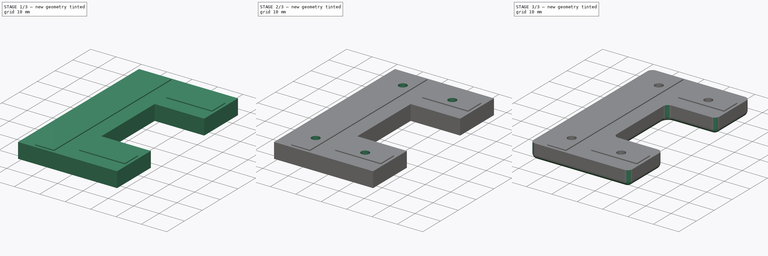
[diagram: build sequence overview — one tinted view per stage of 3, left to right]
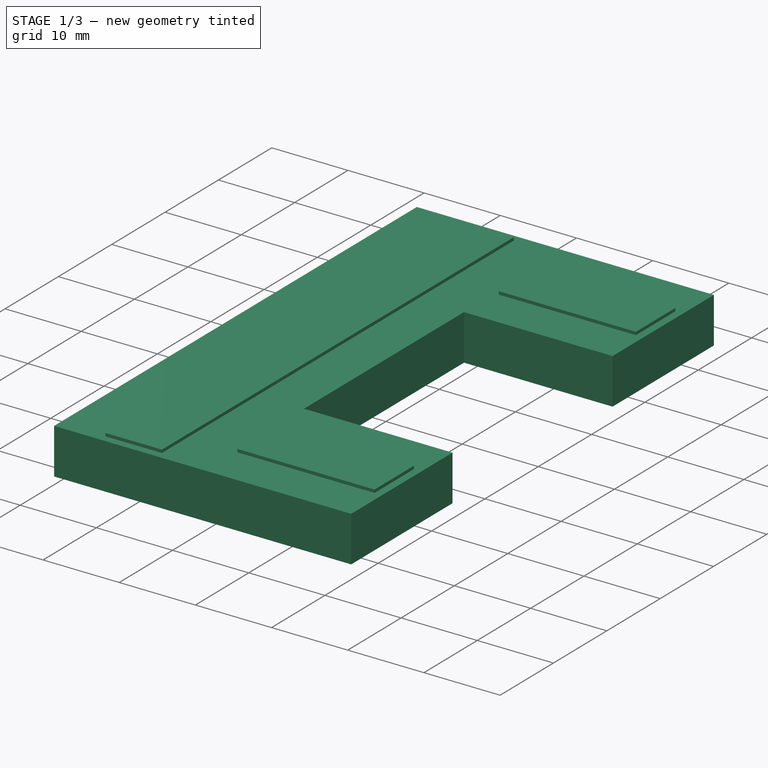
[diagram: stage 1 of 3 — iso view after this stage's code; geometry added in this stage tinted green]
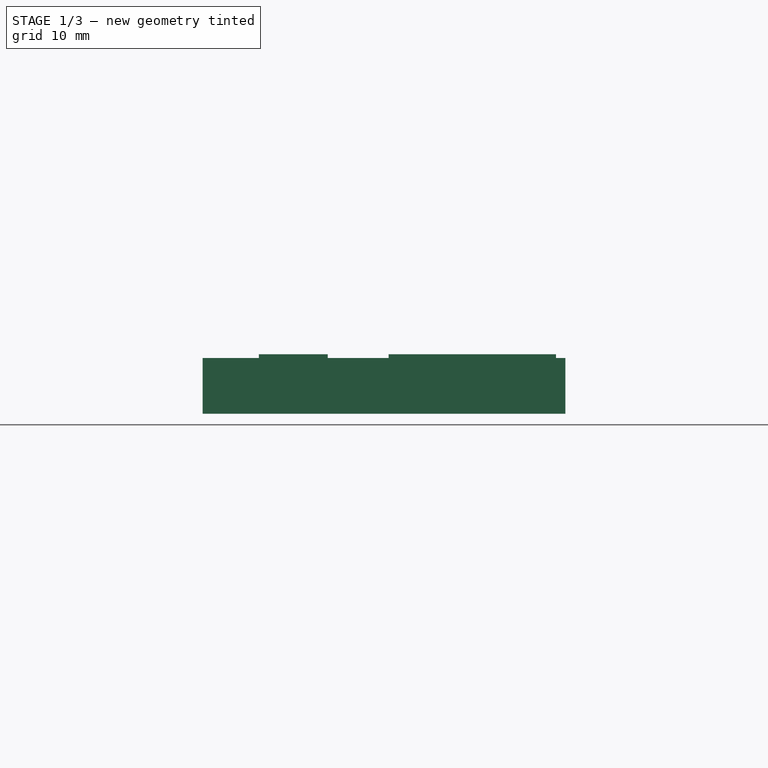
[diagram: stage 1 of 3 — front view after this stage's code; geometry added in this stage tinted green]
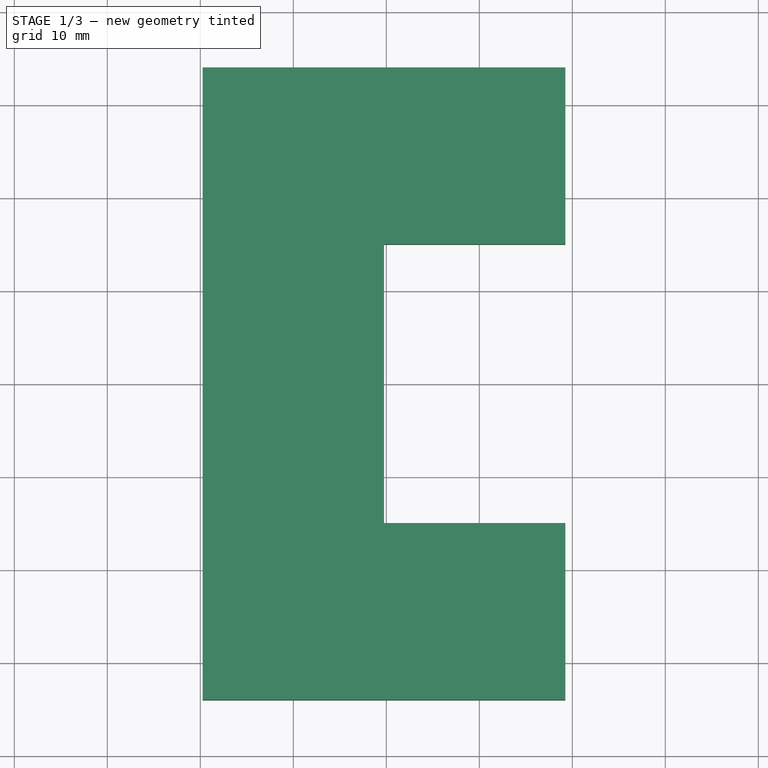
[diagram: stage 1 of 3 — top view after this stage's code; geometry added in this stage tinted green]
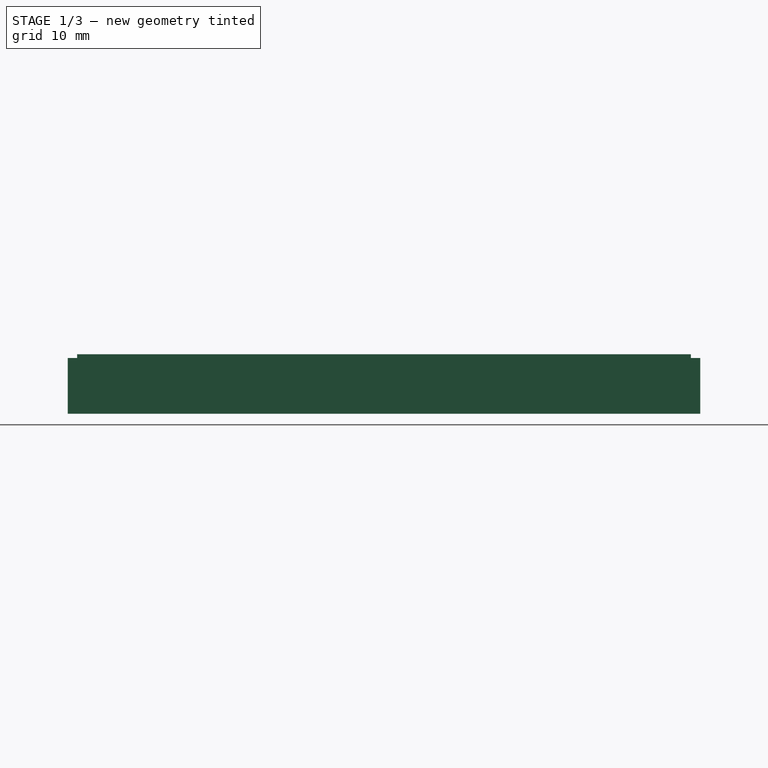
[diagram: stage 1 of 3 — right view after this stage's code; geometry added in this stage tinted green]
FCSTD DOCUMENT  (FreeCAD 0.16R5235 (Git))
Label: bracket-dbl
License: All rights reserved
LicenseURL: https://ru.wikipedia.org/wiki/All_rights_reserved
objects: Sketcher::SketchObject×5, PartDesign::Pad×3, PartDesign::Pocket×2, PartDesign::Chamfer×1, PartDesign::Fillet×1
note: 17 computed .brp shape members not serialized (recipe doc carries the construction recipe); baked Part::Feature solids carry a one-line shape summary decoded from their .brp

FEATURE [Sketcher::SketchObject] Sketch  label="body"
  sketch-geometry (10):
    g0: LineSegment StartX=-9.75 StartY=34 StartZ=0 EndX=-9.75 EndY=-34 EndZ=0
    g1: LineSegment StartX=-9.75 StartY=-34 StartZ=0 EndX=29.25 EndY=-34 EndZ=0
    g2: LineSegment StartX=29.25 StartY=-34 StartZ=0 EndX=29.25 EndY=-15 EndZ=0
    g3: LineSegment StartX=29.25 StartY=-15 StartZ=0 EndX=9.75 EndY=-15 EndZ=0
    g4: LineSegment StartX=9.75 StartY=-15 StartZ=0 EndX=9.75 EndY=15 EndZ=0
    g5: LineSegment StartX=9.75 StartY=15 StartZ=0 EndX=29.25 EndY=15 EndZ=0
    g6: LineSegment StartX=29.25 StartY=15 StartZ=0 EndX=29.25 EndY=34 EndZ=0
    g7: GeomPoint [constr] X=9.75 Y=34 Z=0
    g8: LineSegment StartX=-9.75 StartY=34 StartZ=0 EndX=9.75 EndY=34 EndZ=0
    g9: LineSegment StartX=9.75 StartY=34 StartZ=0 EndX=29.25 EndY=34 EndZ=0
  constraints (28):
    c: Vertical(g0)
    c: Coincident(g0,g1)
    c: Horizontal(g1)
    c: Coincident(g1,g2)
    c: Vertical(g2)
    c: Coincident(g2,g3)
    c: Horizontal(g3)
    c: Coincident(g3,g4)
    c: Vertical(g4)
    c: Coincident(g4,g5)
    c: Horizontal(g5)
    c: Coincident(g5,g6)
    c: Vertical(g6)
    c: Equal(g6,g2)
    c: DistanceY(g2) = 19
    c: DistanceY(g4) = 30
    c: Symmetric(g0,g0,g-1)
    c: Coincident(g8,g0)
    c: Coincident(g8,g7)
    c: Horizontal(g8)
    c: Coincident(g9,g7)
    c: Coincident(g9,g6)
    c: Horizontal(g9)
    c: Equal(g9,g8)
    c: Symmetric(g7,g0,g-2)
    c: Equal(g9,g5)
    c: Equal(g3,g5)
    c: DistanceX(g0,g6) = 39
FEATURE [PartDesign::Pad] Pad
  Length = 6
  Length2 = 100
  Sketch = -> Sketch
  Type = 0
FEATURE [Sketcher::SketchObject] Sketch002  label="pads"
  ExternalGeometry = -> [Pad]
  Placement = pos=(0,0,6) rot=(0,0,1;0rad)
  Support = -> Pad [Face9]
  sketch-geometry (16):
    g0: LineSegment StartX=-3.7 StartY=33 StartZ=0 EndX=3.7 EndY=33 EndZ=0
    g1: LineSegment StartX=3.7 StartY=33 StartZ=0 EndX=3.7 EndY=-33 EndZ=0
    g2: LineSegment StartX=3.7 StartY=-33 StartZ=0 EndX=-3.7 EndY=-33 EndZ=0
    g3: LineSegment StartX=-3.7 StartY=-33 StartZ=0 EndX=-3.7 EndY=33 EndZ=0
    g4: LineSegment StartX=10.25 StartY=28.2 StartZ=0 EndX=28.25 EndY=28.2 EndZ=0
    g5: LineSegment StartX=28.25 StartY=28.2 StartZ=0 EndX=28.25 EndY=20.8 EndZ=0
    g6: LineSegment StartX=28.25 StartY=20.8 StartZ=0 EndX=10.25 EndY=20.8 EndZ=0
    g7: LineSegment StartX=10.25 StartY=20.8 StartZ=0 EndX=10.25 EndY=28.2 EndZ=0
    g8: LineSegment StartX=10.25 StartY=-20.8 StartZ=0 EndX=28.25 EndY=-20.8 EndZ=0
    g9: LineSegment StartX=28.25 StartY=-20.8 StartZ=0 EndX=28.25 EndY=-28.2 EndZ=0
    g10: LineSegment StartX=28.25 StartY=-28.2 StartZ=0 EndX=10.25 EndY=-28.2 EndZ=0
    g11: LineSegment StartX=10.25 StartY=-28.2 StartZ=0 EndX=10.25 EndY=-20.8 EndZ=0
    g12: LineSegment [constr] StartX=12 StartY=34 StartZ=0 EndX=12 EndY=28.2 EndZ=0
    g13: LineSegment [constr] StartX=12 StartY=20.8 StartZ=0 EndX=12 EndY=15 EndZ=0
    g14: LineSegment [constr] StartX=12 StartY=-15 StartZ=0 EndX=12 EndY=-20.8 EndZ=0
    g15: LineSegment [constr] StartX=12 StartY=-28.2 StartZ=0 EndX=12 EndY=-34 EndZ=0
  constraints (47):
    c: Coincident(g0,g1)
    c: Coincident(g1,g2)
    c: Coincident(g2,g3)
    c: Coincident(g3,g0)
    c: Horizontal(g0)
    c: Horizontal(g2)
    c: Vertical(g1)
    c: Vertical(g3)
    c: Coincident(g4,g5)
    c: Coincident(g5,g6)
    c: Coincident(g6,g7)
    c: Coincident(g7,g4)
    c: Horizontal(g4)
    c: Horizontal(g6)
    c: Vertical(g5)
    c: Vertical(g7)
    c: Coincident(g8,g9)
    c: Coincident(g9,g10)
    c: Coincident(g10,g11)
    c: Coincident(g11,g8)
    c: Horizontal(g8)
    c: Horizontal(g10)
    c: Vertical(g9)
    c: Vertical(g11)
    c: Symmetric(g0,g0,g-2)
    c: DistanceX(g0,g0) = 7.4
    c: DistanceY(g0,g-4) = 1
    c: Symmetric(g0,g2,g-1)
    c: DistanceX(g4,g-4) = 1
    c: DistanceX(g4,g4) = -18
    c: Equal(g4,g8)
    c: Equal(g9,g5)
    c: Symmetric(g5,g8,g-1)
    c: PointOnObject(g12,g-4)
    c: PointOnObject(g12,g4)
    c: Vertical(g12)
    c: PointOnObject(g13,g6)
    c: Vertical(g13)
    c: PointOnObject(g14,g-6)
    c: PointOnObject(g14,g8)
    c: Vertical(g14)
    c: PointOnObject(g15,g10)
    c: PointOnObject(g15,g-8)
    c: Vertical(g15)
    c: Equal(g12,g13)
    c: Equal(g14,g15)
    c: DistanceY(g8,g10) = -7.4
FEATURE [PartDesign::Pad] Pad001
  Length = 0.4
  Length2 = 100
  Sketch = -> Sketch002
  Type = 0
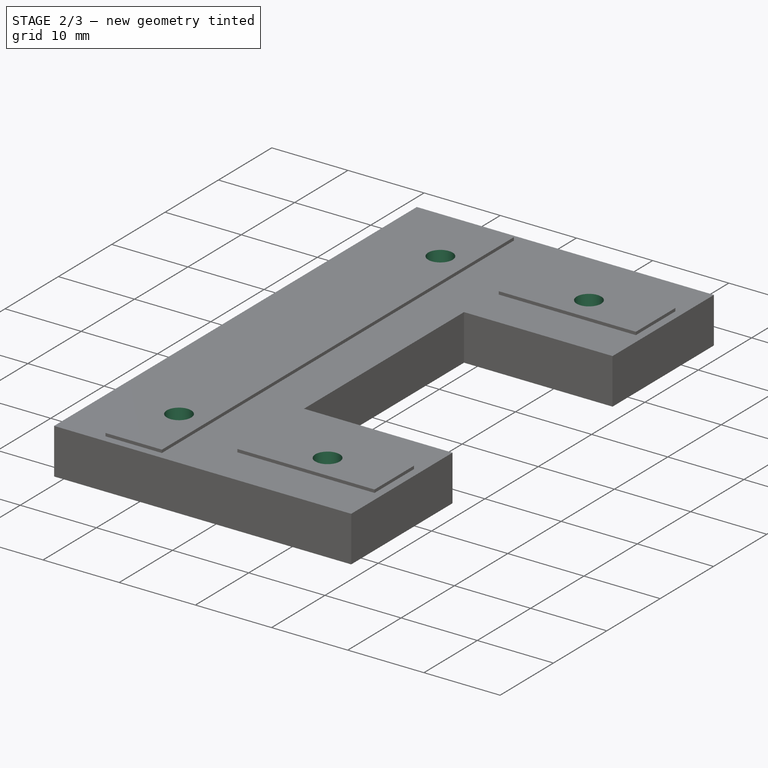
[diagram: stage 2 of 3 — iso view after this stage's code; geometry added in this stage tinted green]
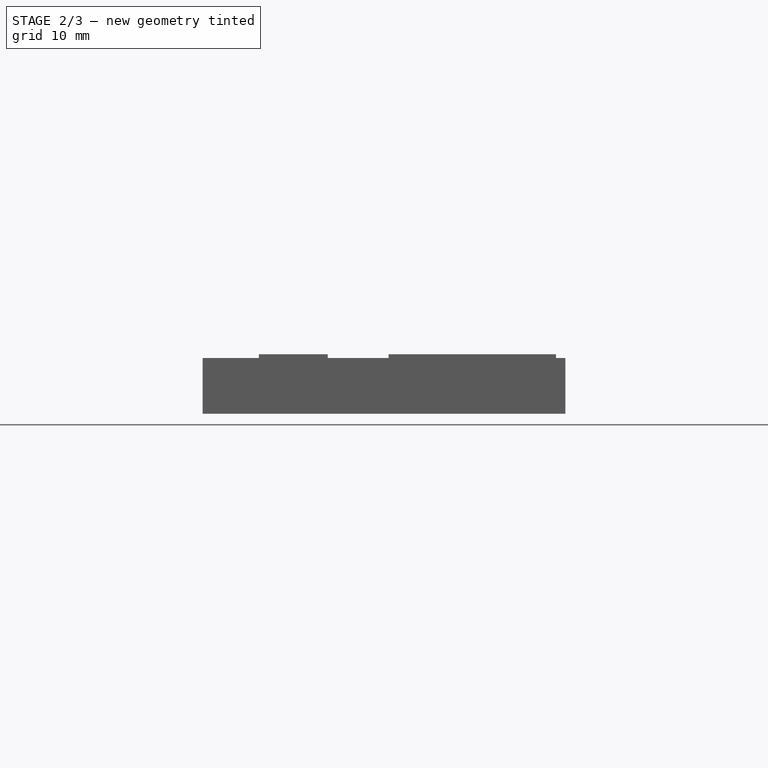
[diagram: stage 2 of 3 — front view after this stage's code; geometry added in this stage tinted green]
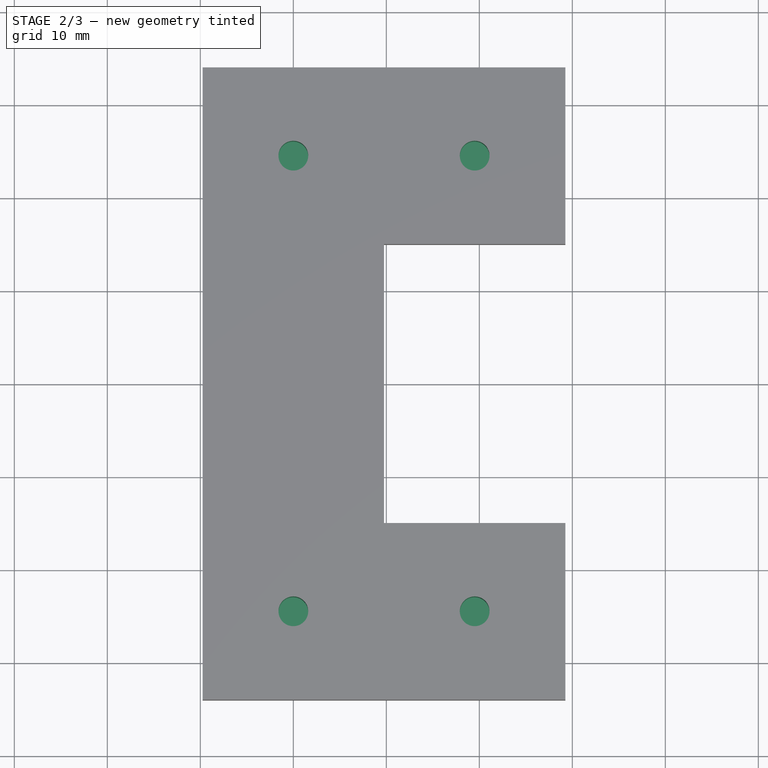
[diagram: stage 2 of 3 — top view after this stage's code; geometry added in this stage tinted green]
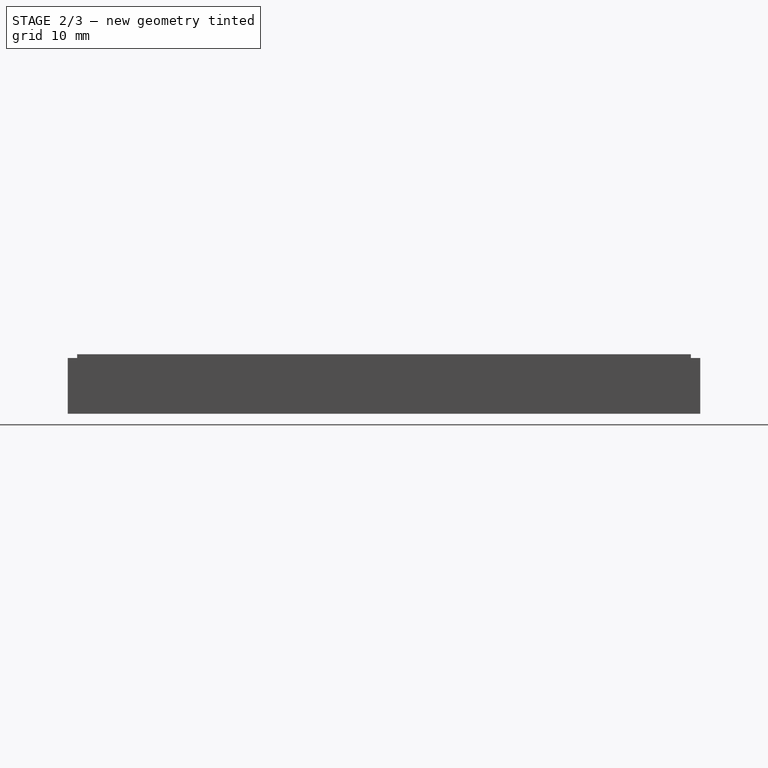
[diagram: stage 2 of 3 — right view after this stage's code; geometry added in this stage tinted green]
FEATURE [Sketcher::SketchObject] Sketch003  label="m3 holes"
  ExternalGeometry = -> [Pad001]
  Placement = pos=(0,0,0) rot=(1,0,0;3.14159rad)
  Support = -> Pad001 [Face4]
  sketch-geometry (7):
    g0: Circle CenterX=0 CenterY=24.5 CenterZ=0 NormalX=0 NormalY=0 NormalZ=1 Radius=1.6
    g1: Circle CenterX=19.5 CenterY=24.5 CenterZ=0 NormalX=0 NormalY=0 NormalZ=1 Radius=1.6
    g2: Circle CenterX=0 CenterY=-24.5 CenterZ=0 NormalX=0 NormalY=0 NormalZ=1 Radius=1.6
    g3: Circle CenterX=19.5 CenterY=-24.5 CenterZ=0 NormalX=0 NormalY=0 NormalZ=1 Radius=1.6
    g4: LineSegment [constr] StartX=0 StartY=24.5 StartZ=0 EndX=29.25 EndY=24.5 EndZ=0
    g5: LineSegment [constr] StartX=0 StartY=-24.5 StartZ=0 EndX=29.25 EndY=-24.5 EndZ=0
    g6: LineSegment [constr] StartX=19.5 StartY=-24.5 StartZ=0 EndX=19.5 EndY=24.5 EndZ=0
  constraints (20):
    c: PointOnObject(g2,g-2)
    c: Radius(g0) = 1.6
    c: Equal(g0,g1)
    c: Equal(g1,g2)
    c: Equal(g2,g3)
    c: Coincident(g4,g0)
    c: PointOnObject(g4,g-4)
    c: Horizontal(g4)
    c: PointOnObject(g5,g-7)
    c: Horizontal(g5)
    c: Coincident(g6,g1)
    c: Vertical(g6)
    c: Symmetric(g-5,g-5,g6)
    c: Coincident(g2,g5)
    c: PointOnObject(g0,g-2)
    c: Symmetric(g-8,g-7,g5)
    c: Symmetric(g-4,g-5,g4)
    c: PointOnObject(g1,g4)
    c: PointOnObject(g3,g5)
    c: Coincident(g6,g3)
FEATURE [PartDesign::Pocket] Pocket
  Length = 5
  Sketch = -> Sketch003
  Type = 1
FEATURE [Sketcher::SketchObject] Sketch004  label="m3 heads"
  ExternalGeometry = -> [Pocket]
  Placement = pos=(0,0,0) rot=(1,0,0;3.14159rad)
  Support = -> Pocket [Face4]
  sketch-geometry (4):
    g0: Circle CenterX=0 CenterY=24.5 CenterZ=0 NormalX=0 NormalY=0 NormalZ=1 Radius=3
    g1: Circle CenterX=19.5 CenterY=24.5 CenterZ=0 NormalX=0 NormalY=0 NormalZ=1 Radius=3
    g2: Circle CenterX=0 CenterY=-24.5 CenterZ=0 NormalX=0 NormalY=0 NormalZ=1 Radius=3
    g3: Circle CenterX=19.5 CenterY=-24.5 CenterZ=0 NormalX=0 NormalY=0 NormalZ=1 Radius=3
  constraints (8):
    c: Radius(g0) = 3
    c: Equal(g0,g1)
    c: Equal(g1,g3)
    c: Equal(g3,g2)
    c: Coincident(g0,g-3)
    c: Coincident(g1,g-4)
    c: Coincident(g3,g-5)
    c: Coincident(g2,g-6)
FEATURE [PartDesign::Pocket] Pocket001
  Length = 1
  Sketch = -> Sketch004
  Type = 0
FEATURE [Sketcher::SketchObject] Sketch005  label="aux plates"
  ExternalGeometry = -> [Pocket001]
  Placement = pos=(0,0,1) rot=(1,0,0;3.14159rad)
  Support = -> Pocket001 [Face27]
  sketch-geometry (4):
    g0: Circle CenterX=0 CenterY=24.5 CenterZ=0 NormalX=0 NormalY=0 NormalZ=1 Radius=4
    g1: Circle CenterX=19.5 CenterY=24.5 CenterZ=0 NormalX=0 NormalY=0 NormalZ=1 Radius=4
    g2: Circle CenterX=0 CenterY=-24.5 CenterZ=0 NormalX=0 NormalY=0 NormalZ=1 Radius=4
    g3: Circle CenterX=19.5 CenterY=-24.5 CenterZ=0 NormalX=0 NormalY=0 NormalZ=1 Radius=4
  constraints (8):
    c: Coincident(g0,g-4)
    c: Coincident(g1,g-3)
    c: Coincident(g2,g-6)
    c: Coincident(g3,g-5)
    c: Radius(g0) = 4
    c: Equal(g0,g1)
    c: Equal(g1,g3)
    c: Equal(g3,g2)
FEATURE [PartDesign::Pad] Pad002
  Length = 0.2
  Length2 = 100
  Reversed = true
  Sketch = -> Sketch005
  Type = 0
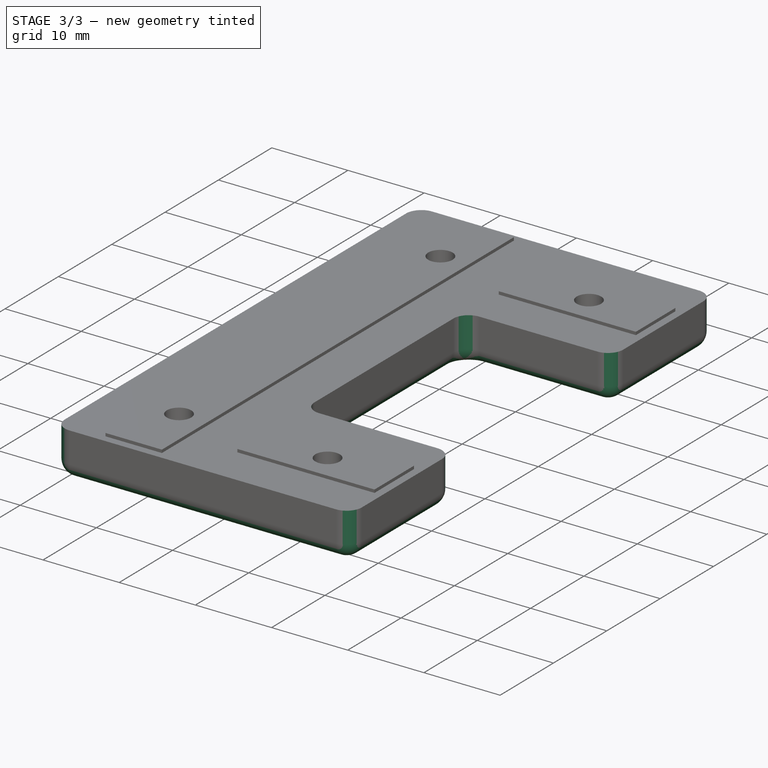
[diagram: stage 3 of 3 — iso view after this stage's code; geometry added in this stage tinted green]
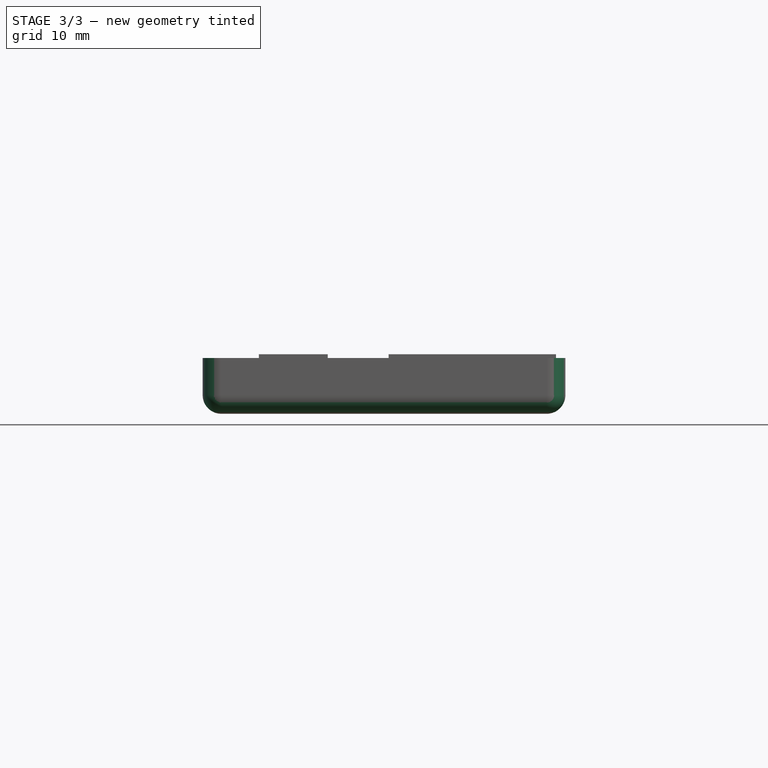
[diagram: stage 3 of 3 — front view after this stage's code; geometry added in this stage tinted green]
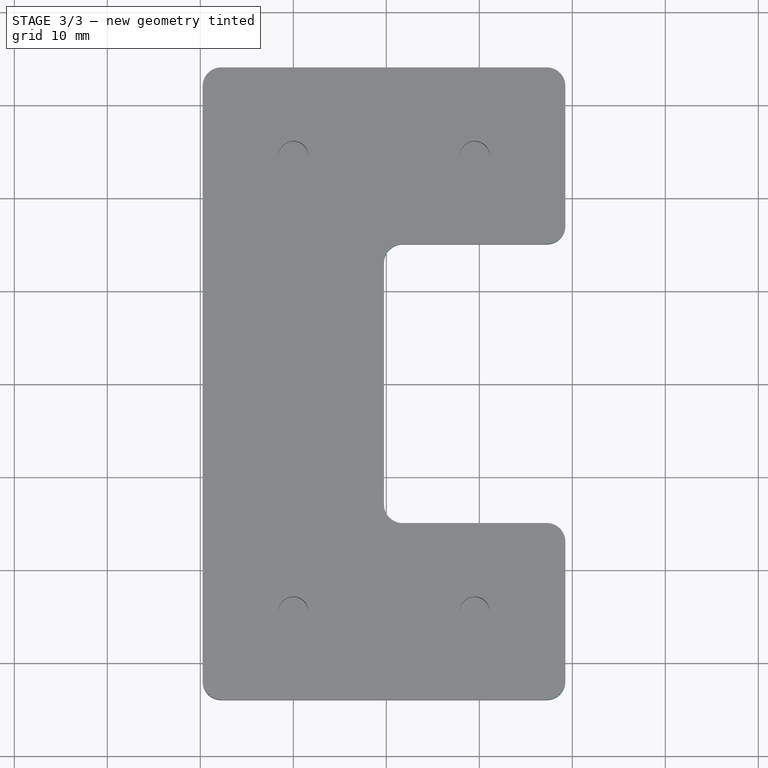
[diagram: stage 3 of 3 — top view after this stage's code; geometry added in this stage tinted green]
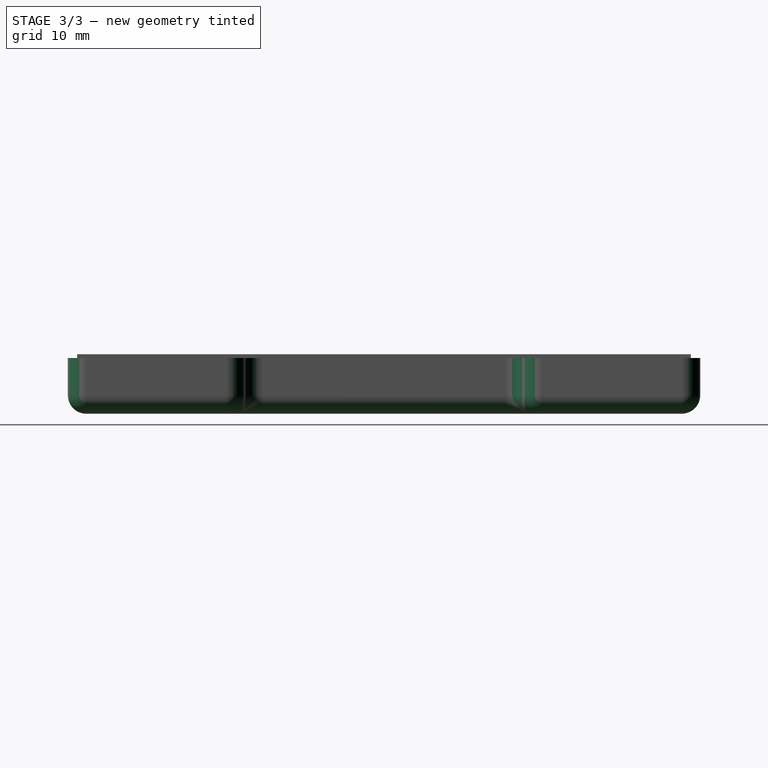
[diagram: stage 3 of 3 — right view after this stage's code; geometry added in this stage tinted green]
FEATURE [PartDesign::Chamfer] Chamfer
  Base = -> Pad002 [Edge19,Edge18,Edge16,Edge17]
  Size = 0.4
FEATURE [PartDesign::Fillet] Fillet
  Base = -> Chamfer [Edge26,Edge9,Edge7,Edge28,Edge8,Edge24,Edge22,Edge5,Edge6,Edge20,Edge4,Edge18,Edge3,Edge15,Edge2,Edge16]
  Radius = 2
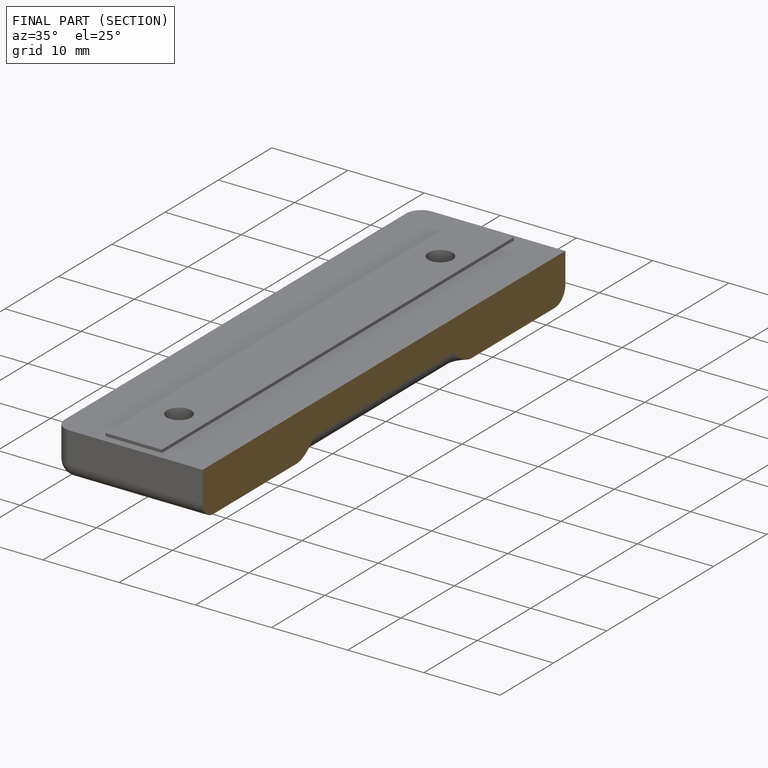
[diagram: finished part — half-section view (interior)]
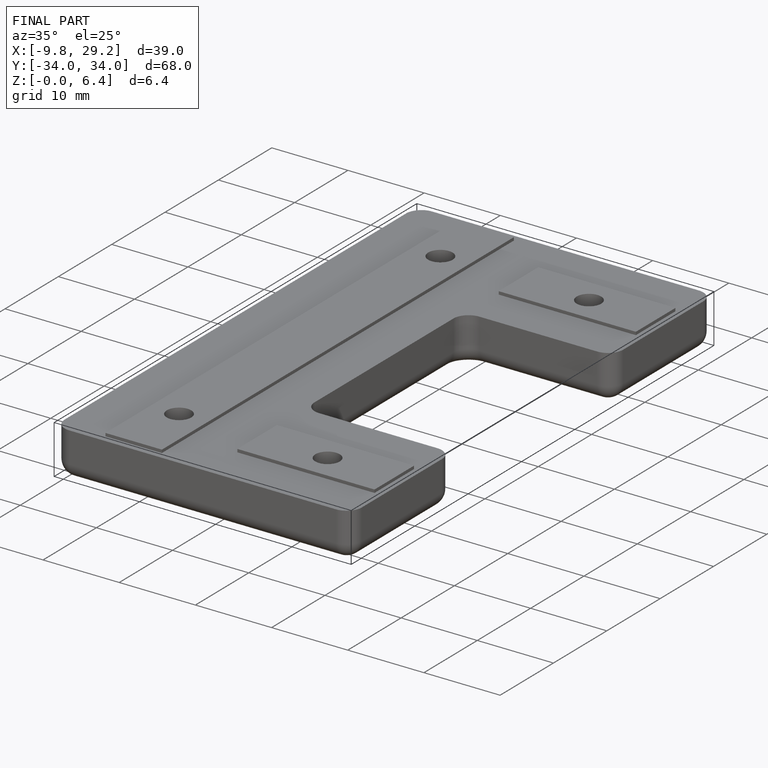
[diagram: finished part — iso view with bounding-box wireframe]
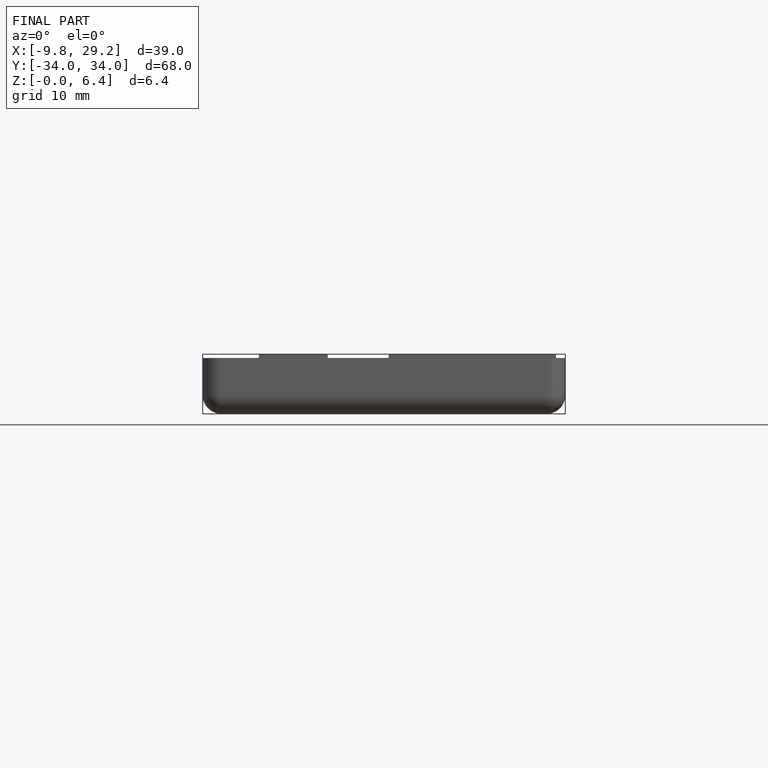
[diagram: finished part — front view with bounding-box wireframe]
